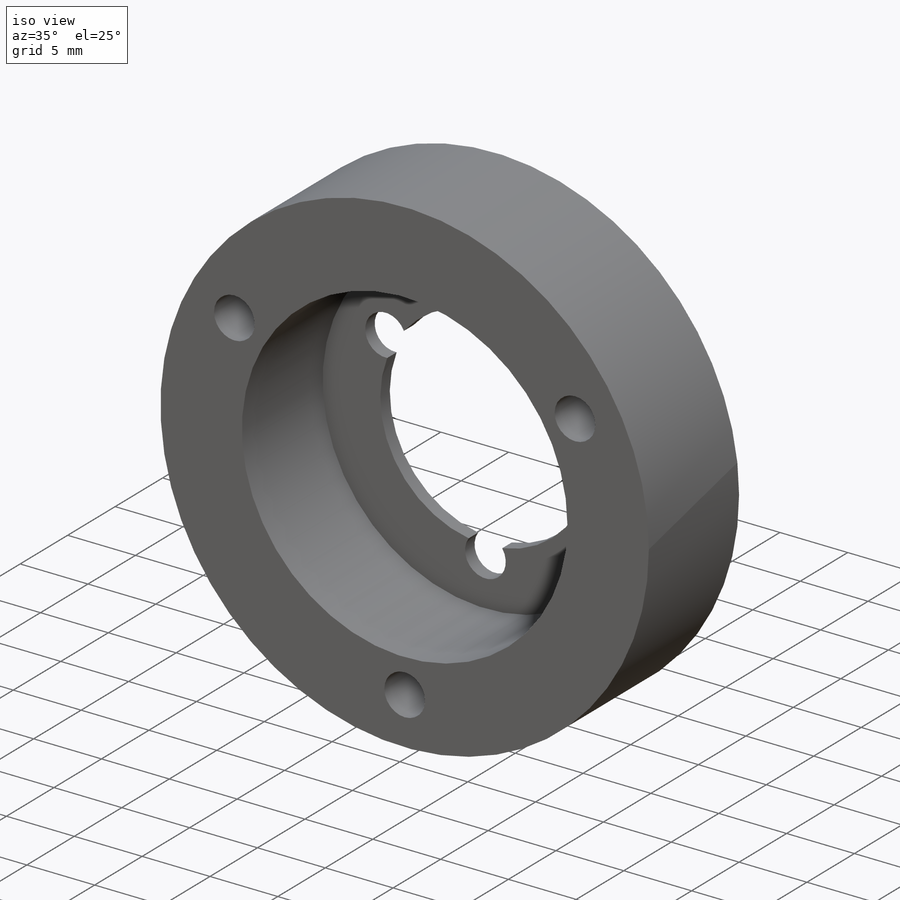
[diagram: iso view]
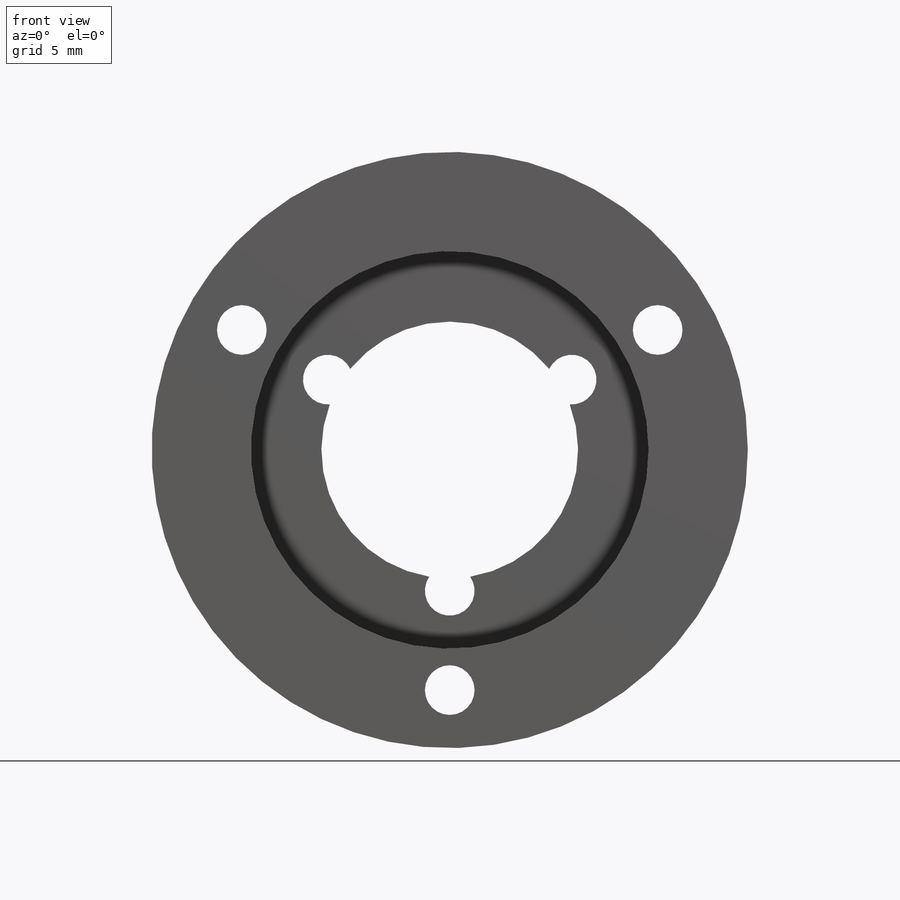
[diagram: front view]
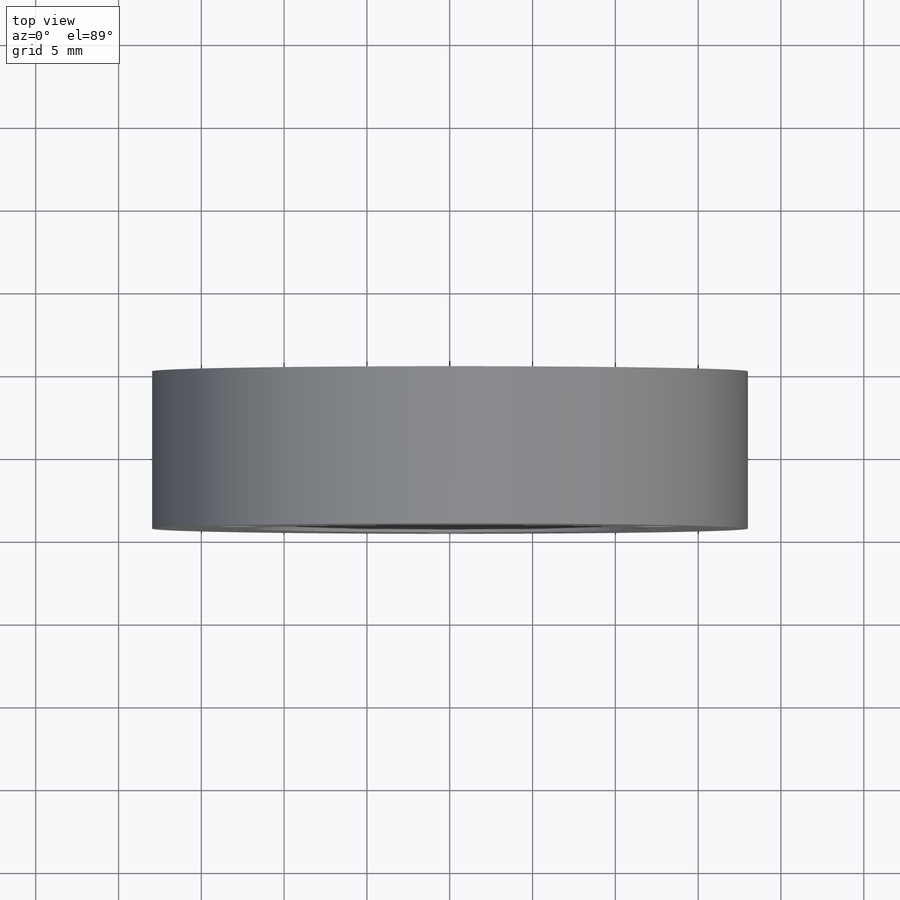
[diagram: top view]
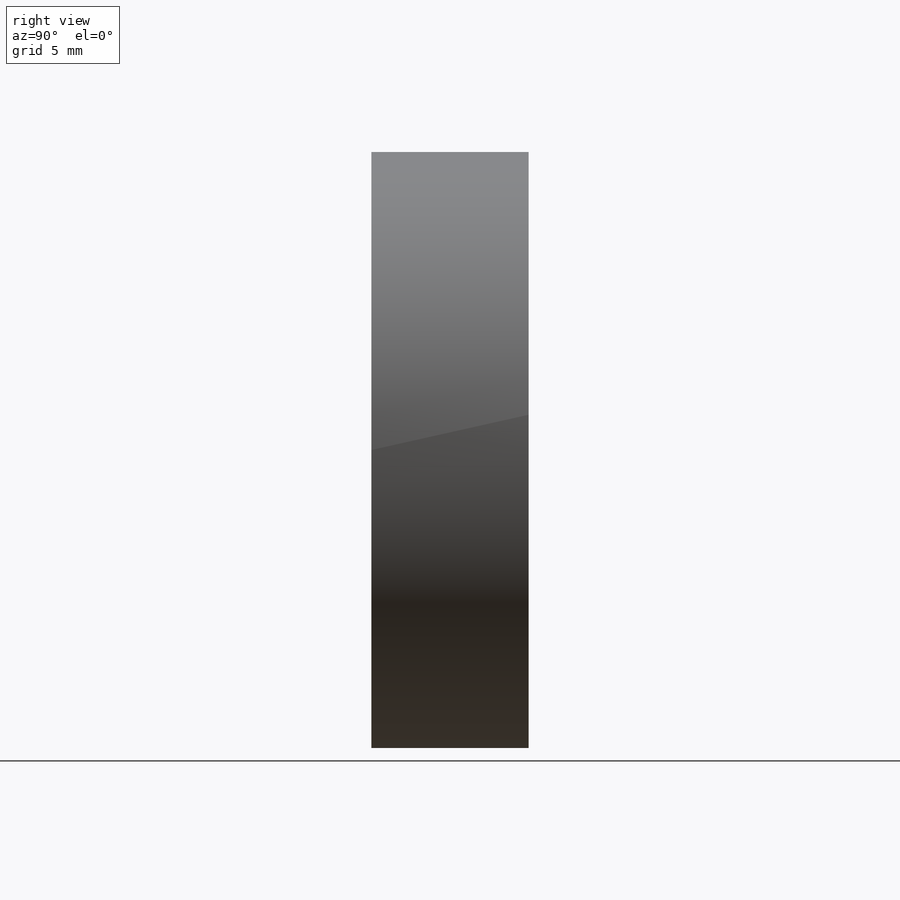
[diagram: right view]
SOLIDWORKS PART (.sldprt)
format: sldprt  version: not decoded by parser v0  size: 224,256 bytes
history: native  units: mm
features: sketch x4, plane x3, cut_extrude x3, material x1, extrude x1 (+13 scaffold rows collapsed)
feature tree (25):
  scaffold x13  (default folders/planes/origin — collapsed)
  material  "Matériau <non spécifié>"
  plane  "Plan de face"
  plane  "Plan de dessus"
  plane  "Plan de droite"
  sketch  "Esquisse1"  dims[D1=9.5mm]
  extrude  "Extrusion1"  Depth=45mm
  sketch  "Esquisse2"  dims[c1.D1=~1.357184mm c1.D4=7.75mm c1.D5=1.5mm c2.D1=12.555mm c3.D1=90.0deg c3.D2=90.0deg c3.D3=60.0deg c3.D6=8.5mm c3.D7=8.5mm c3.D8=8.5mm]
  cut_extrude  "Extrusion2"  Depth=45mm
  sketch  "Esquisse3"  dims[D1=~11.005712mm]
  cut_extrude  "Extrusion3"  Depth=8.5mm
  sketch  "Esquisse4"  dims[D1=~18.120172mm]
  cut_extrude  "Extrusion4"  [1 undecoded]
decode coverage: 7 of 8 modeling features carry decoded parameters
note: ~ marks probable driven/reference dimensions
note: 1 parameter value undecoded
note: suppression state not decoded; provenance and decode notes live in map.json
